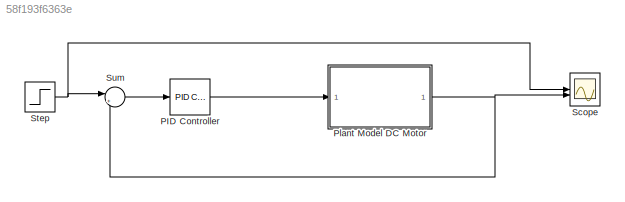
MODEL slx_58f193f6363e
KIND model
CONFIG AbsTol = auto
CONFIG EnableMultiTasking = off
CONFIG FixedStep = auto
CONFIG MaxStep = auto
CONFIG MinStep = auto
CONFIG RelTol = 1e-3
CONFIG SampleTimeConstraint = Unconstrained
CONFIG SolverName = VariableStepAuto
CONFIG StartTime = 0.0
CONFIG StopTime = 3
BLOCK [Reference] PID Controller  REF=slpidlib/PID Controller
  LibrarySourceBlock = simulink/Continuous/PID Controller
  SourceBlock = slpidlib/PID Controller
  SourceType = PID 1dof
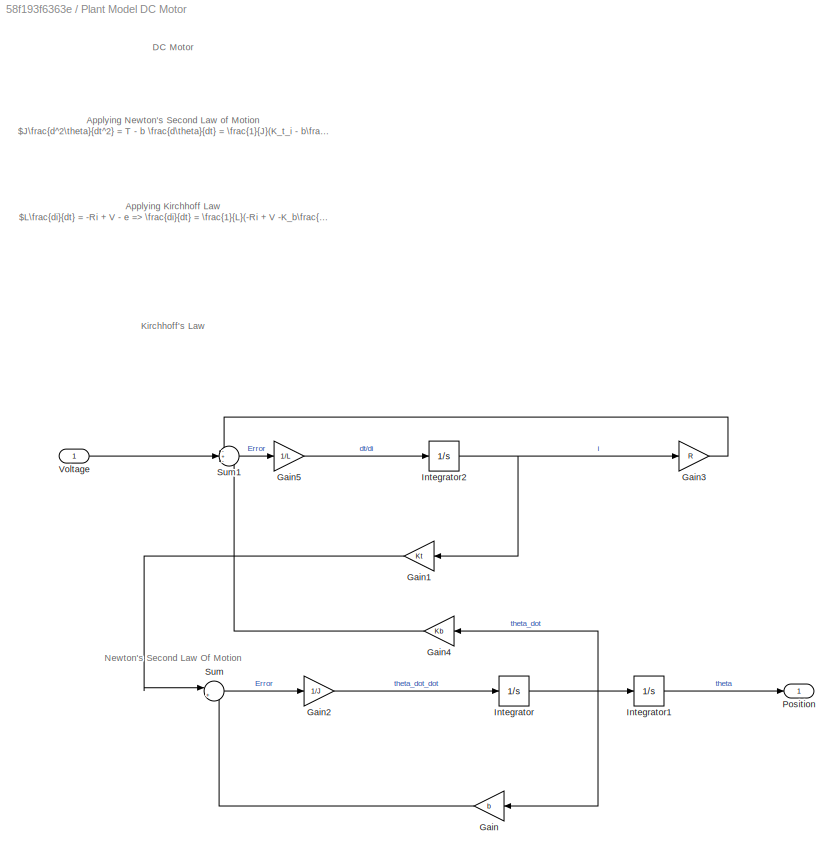
BLOCK [SubSystem] Plant Model DC Motor
BLOCK [Gain] Plant Model DC Motor/Gain
  Gain = b
  NameLocation = top
BLOCK [Gain] Plant Model DC Motor/Gain1
  Gain = Kt
  NameLocation = top
BLOCK [Gain] Plant Model DC Motor/Gain2
  Gain = 1/J
BLOCK [Gain] Plant Model DC Motor/Gain3
  Gain = R
BLOCK [Gain] Plant Model DC Motor/Gain4
  Gain = Kb
  NameLocation = top
BLOCK [Gain] Plant Model DC Motor/Gain5
  Gain = 1/L
BLOCK [Integrator] Plant Model DC Motor/Integrator
BLOCK [Integrator] Plant Model DC Motor/Integrator1
BLOCK [Integrator] Plant Model DC Motor/Integrator2
BLOCK [Outport] Plant Model DC Motor/Position
BLOCK [Sum] Plant Model DC Motor/Sum
  Inputs = |+-
BLOCK [Sum] Plant Model DC Motor/Sum1
  Inputs = -+-
BLOCK [Inport] Plant Model DC Motor/Voltage
BLOCK [Scope] Scope
  ActiveDisplayYMaximum = 1.1494593533833519
  ActiveDisplayYMinimum = -0.12771770593148352
  Floating = off
  GraphicalSettings = {"Style":{"BackgroundColor":[0.12941176470588237,0.12941176470588237,0.12941176470588237],"AxesColor":[0.07058823529411765,0.07058823529411765,0.07058823529411765],"LabelsColor":[0.8509803921568627,0.8509803921568627,0.8509803921568627],"PreserveColors":false,"Visible":[true,true],"LineStyle":["-","-"],"LineWidth":[1.5,1.5],"BarWidth":[0.9,0.9],"LineColor":["auto","auto"],"LineFaceAlpha":[1,1],"Li...<+2381ch>
  MultipleDisplayCache = [{"MaxYLimMag":1.1494593533833519,"MaxYLimReal":1.1494593533833519,"MinYLimMag":0,"MinYLimReal":-0.12771770593148352,"PlotAsMagnitudePhase":false,"ShowGrid":true,"ShowLegend":false,"Title":"%<SignalLabel>","YLabel":""}]
  NumInputPorts = 2
  ScopeFrameLocation = window
  Visible = on
  WasSavedAsWebScope = on
  WindowPosition = [366.000000,-59.000000,560.000000,420.000000,]
BLOCK [Step] Step
  After = V
  SampleTime = 0
BLOCK [Sum] Sum
  Inputs = |+-
ANNOTATION Plant Model DC Motor: DC Motor
ANNOTATION Plant Model DC Motor: Applying Kirchhoff Law $L\frac{di}{dt} = -Ri + V - e => \frac{di}{dt} = \frac{1}{L}(-Ri + V -K_b\frac{d\theta}{dt})$
ANNOTATION Plant Model DC Motor: Applying Newton's Second Law of Motion $J\frac{d^2\theta}{dt^2} = T - b \frac{d\theta}{dt} = \frac{1}{J}(K_t_i - b\frac{d\theta}{dt})$
ANNOTATION Plant Model DC Motor: Kirchhoff's Law
ANNOTATION Plant Model DC Motor: Newton's Second Law Of Motion
LINE PID Controller:1 -> Plant Model DC Motor:1
LINE Plant Model DC Motor/Gain1:1 -> Plant Model DC Motor/Sum:1
LINE Plant Model DC Motor/Gain2:1 -> Plant Model DC Motor/Integrator:1
LINE Plant Model DC Motor/Gain3:1 -> Plant Model DC Motor/Sum1:1
LINE Plant Model DC Motor/Gain4:1 -> Plant Model DC Motor/Sum1:3
LINE Plant Model DC Motor/Gain5:1 -> Plant Model DC Motor/Integrator2:1
LINE Plant Model DC Motor/Gain:1 -> Plant Model DC Motor/Sum:2
LINE Plant Model DC Motor/Integrator1:1 -> Plant Model DC Motor/Position:1
NET Plant Model DC Motor/Integrator2:1 -> Plant Model DC Motor/Gain1:1, Plant Model DC Motor/Gain3:1
NET Plant Model DC Motor/Integrator:1 -> Plant Model DC Motor/Gain4:1, Plant Model DC Motor/Gain:1, Plant Model DC Motor/Integrator1:1
LINE Plant Model DC Motor/Sum1:1 -> Plant Model DC Motor/Gain5:1
LINE Plant Model DC Motor/Sum:1 -> Plant Model DC Motor/Gain2:1
LINE Plant Model DC Motor/Voltage:1 -> Plant Model DC Motor/Sum1:2
NET Plant Model DC Motor:1 -> Scope:2, Sum:2
NET Step:1 -> Scope:1, Sum:1
LINE Sum:1 -> PID Controller:1
note: NET lines group one-source signal fan-out (src -> all destinations, sorted); 1:1 wires keep LINE
